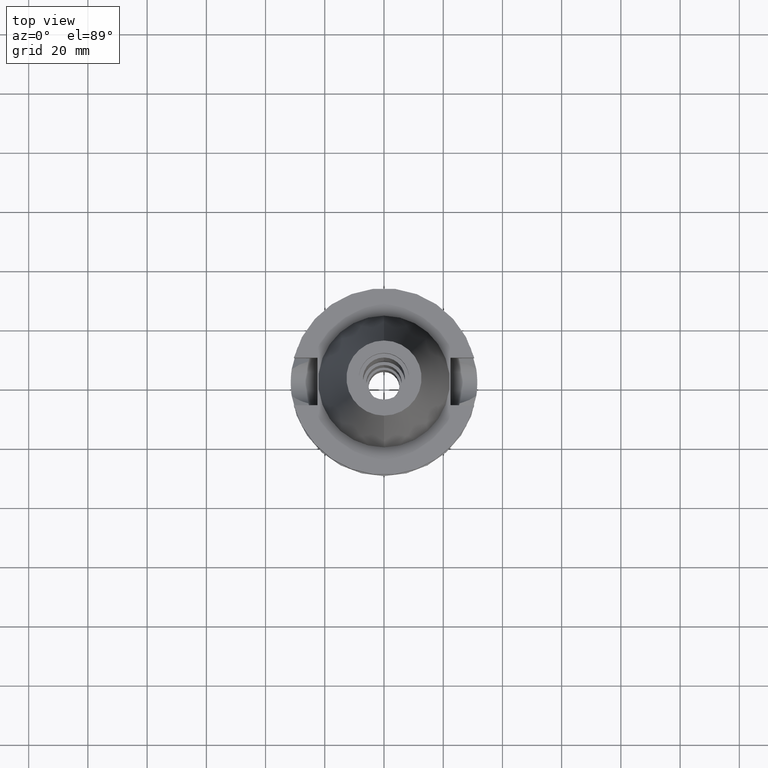
[diagram: clean part render]
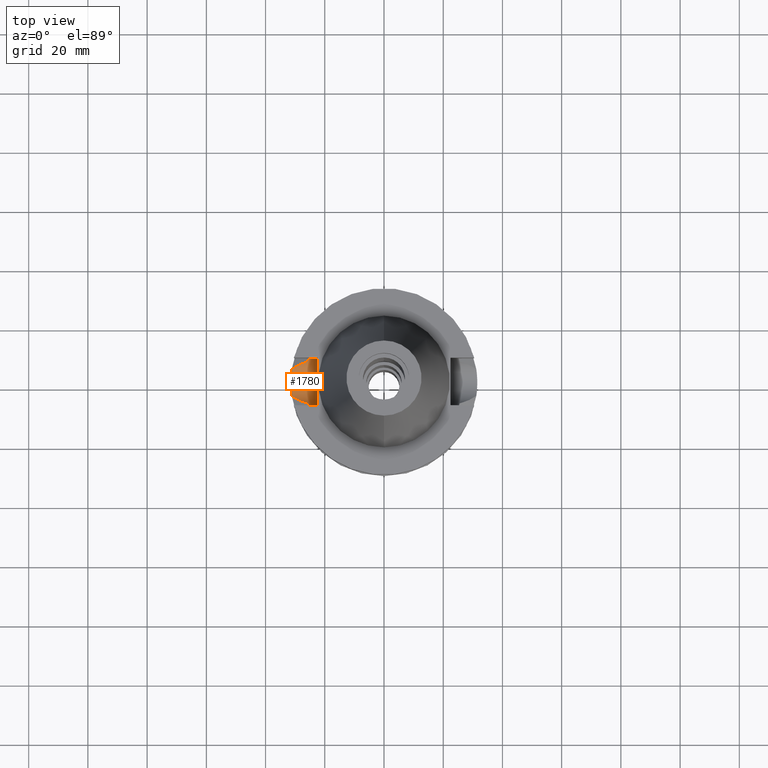
[diagram: same view with one face highlighted and labeled with its STEP entity id]
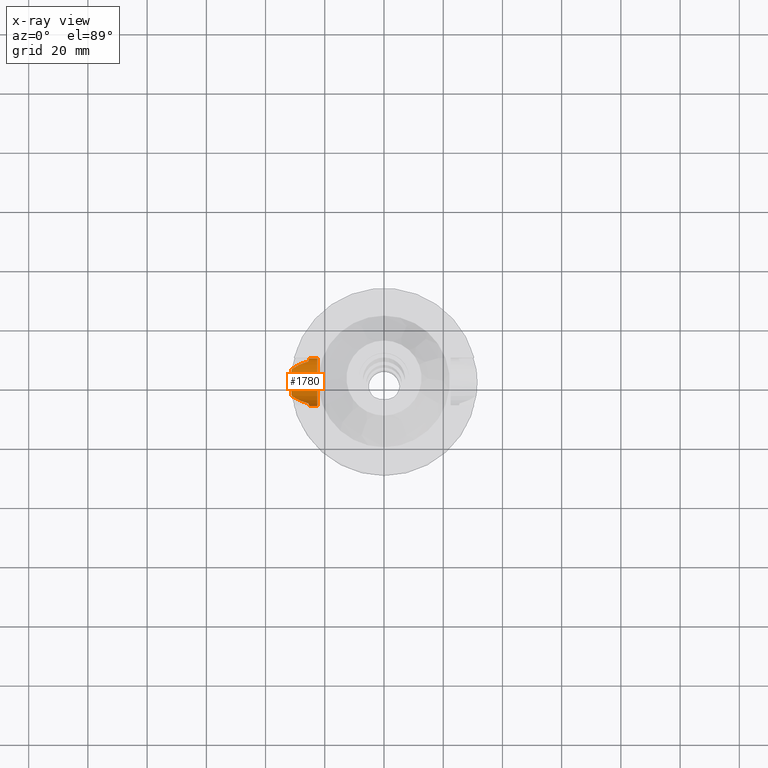
[diagram: x-ray of the same camera — body ghosted, the highlighted face saturated]
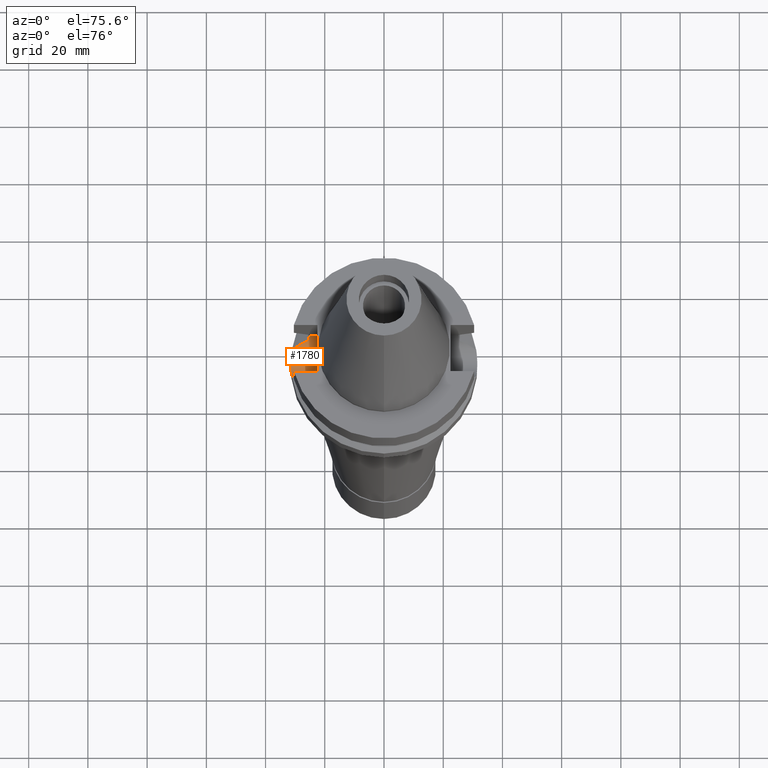
[diagram: same view with one face highlighted and labeled with its STEP entity id]
A machine part, top view. The second image highlights one B-rep face of the part: STEP entity #1780.
The next image is the same camera in x-ray: the body ghosted, the highlighted face saturated — about 0% of this face is hidden behind the body in this view.
A second angle (auxiliary view) of the same face is appended — the face is thin or edge-on in the first view.
In plain terms, the highlighted cylindrical surface (edge-blend (fillet) strip) has radius 8.05 mm, axis along (-1, 0, 0).
Its self-contained STEP definition (entity closure, byte-faithful):
#5 = CARTESIAN_POINT ( 'NONE',  ( -29.56190519260020722, -5.521818136318563219, -20.81013551602900336 ) ) ;
#19 = CARTESIAN_POINT ( 'NONE',  ( -30.43265407114605026, -5.016892109407281808, -21.25443232370989222 ) ) ;
#68 = CARTESIAN_POINT ( 'NONE',  ( -27.47915929092558329, 6.467270930592707856, -19.74622980979579978 ) ) ;
#77 = CARTESIAN_POINT ( 'NONE',  ( -25.25396593744603635, 8.030896968456861629, -15.59377931114971183 ) ) ;
#82 = CARTESIAN_POINT ( 'NONE',  ( -31.43631590508133655, -2.004794963326180124, -22.74750204103093765 ) ) ;
#104 = CARTESIAN_POINT ( 'NONE',  ( -28.47105657652038246, 6.056637778400851602, -20.25304051675456307 ) ) ;
#172 = CARTESIAN_POINT ( 'NONE',  ( -25.48481820018342248, -7.266687417052686726, -18.43221401828698802 ) ) ;
#219 = CARTESIAN_POINT ( 'NONE',  ( -25.32550226136643445, -7.802082245155482099, -16.93251888163180396 ) ) ;
#231 = B_SPLINE_CURVE_WITH_KNOTS ( 'NONE', 3,
 ( #1729, #1693, #19, #2674, #5, #2686, #1945, #1961, #1919, #2657, #2394, #2426, #2890, #968, #268, #479 ),
 .UNSPECIFIED., .F., .F.,
 ( 4, 2, 2, 1, 1, 1, 1, 2, 2, 4 ),
 ( 0.0000000000000000000, 0.2499999999999963918, 0.3749999999999946709, 0.4374999999999938383, 0.4687499999999928946, 0.4843749999999918954, 0.4921874999999920619, 0.4960937499999927280, 0.4999999999999933387, 1.000000000000000000 ),
 .UNSPECIFIED. ) ;
#256 = CARTESIAN_POINT ( 'NONE',  ( -31.17899877608999759, 4.485536235554000051, -21.63449434733000132 ) ) ;
#267 = CARTESIAN_POINT ( 'NONE',  ( -31.35519737945432439, 3.019151518628610198, -22.41476077804902189 ) ) ;
#268 = CARTESIAN_POINT ( 'NONE',  ( -26.70418400181174690, -6.775580708626685045, -19.35007700967300437 ) ) ;
#273 = AXIS2_PLACEMENT_3D ( 'NONE', #2507, #588, #2491 ) ;
#297 = CARTESIAN_POINT ( 'NONE',  ( -25.36818304348092923, 7.663708172131208585, -17.48836484279920711 ) ) ;
#328 = CARTESIAN_POINT ( 'NONE',  ( -31.41421403793098222, -2.322853185257210740, -22.65761526772426748 ) ) ;
#349 = CARTESIAN_POINT ( 'NONE',  ( -31.36262909399688326, -3.014549055427833135, -22.44710279779418016 ) ) ;
#365 = CARTESIAN_POINT ( 'NONE',  ( -28.63957092587396858, 5.979975310294790347, -20.33910818252959629 ) ) ;
#395 = EDGE_CURVE ( 'NONE', #1122, #2808, #2027, .T. ) ;
#479 = CARTESIAN_POINT ( 'NONE',  ( -25.53175183775000079, -7.097862220092999941, -18.74774300138999905 ) ) ;
#541 = EDGE_LOOP ( 'NONE', ( #2287, #1593, #1836, #2338, #1316, #2951, #1065, #1528 ) ) ;
#544 = CARTESIAN_POINT ( 'NONE',  ( -25.53175183775000079, 7.097862220092999941, -18.74774300138999905 ) ) ;
#554 = FACE_OUTER_BOUND ( 'NONE', #541, .T. ) ;
#568 = B_SPLINE_CURVE_WITH_KNOTS ( 'NONE', 3,
 ( #1786, #172, #1884, #1399, #1867, #1176, #890, #1673, #2152, #219, #704, #656, #2167, #2625 ),
 .UNSPECIFIED., .F., .F.,
 ( 4, 2, 2, 1, 1, 2, 2, 4 ),
 ( 0.0000000000000000000, 0.2500000000000225930, 0.3750000000000351386, 0.4375000000000401901, 0.4687500000000426326, 0.4843750000000427436, 0.5000000000000427436, 1.000000000000000000 ),
 .UNSPECIFIED. ) ;
#587 = CARTESIAN_POINT ( 'NONE',  ( -31.41231539579584364, 2.348418776600582181, -22.64987495964946618 ) ) ;
#588 = DIRECTION ( 'NONE',  ( -1.000000000000000000, 0.0000000000000000000, 0.0000000000000000000 ) ) ;
#591 = VECTOR ( 'NONE', #2777, 1000.000000000000000 ) ;
#630 = LINE ( 'NONE', #2098, #2220 ) ;
#641 = CARTESIAN_POINT ( 'NONE',  ( -28.65198120157347716, 5.974258422801414170, -20.34544700060268596 ) ) ;
#647 = B_SPLINE_CURVE_WITH_KNOTS ( 'NONE', 3,
 ( #768, #1984, #77, #3020, #829, #2772, #1277, #1555, #802, #2708, #1796, #297, #1815, #1748 ),
 .UNSPECIFIED., .F., .F.,
 ( 4, 2, 2, 1, 1, 2, 2, 4 ),
 ( 0.0000000000000000000, 0.2500000000000045519, 0.3750000000000056066, 0.4375000000000061062, 0.4687500000000052736, 0.4843750000000049960, 0.5000000000000046629, 1.000000000000000000 ),
 .UNSPECIFIED. ) ;
#656 = CARTESIAN_POINT ( 'NONE',  ( -25.27269246206562769, -7.973290322421786591, -16.24535685341015068 ) ) ;
#704 = CARTESIAN_POINT ( 'NONE',  ( -25.32419265906723282, -7.806329682138570369, -16.91574545218071890 ) ) ;
#757 = CARTESIAN_POINT ( 'NONE',  ( -31.37925987164072339, 2.755005892132615486, -22.51447617986856287 ) ) ;
#768 = CARTESIAN_POINT ( 'NONE',  ( -25.24772266958000344, 8.050000000000000711, -14.94999999999999929 ) ) ;
#790 = LINE ( 'NONE', #1333, #591 ) ;
#802 = CARTESIAN_POINT ( 'NONE',  ( -25.31652055493196229, 7.831184758220201658, -16.81426458566338411 ) ) ;
#822 = CARTESIAN_POINT ( 'NONE',  ( -28.09296956103505849, 6.220721833289903913, -20.05993128995342545 ) ) ;
#829 = CARTESIAN_POINT ( 'NONE',  ( -25.28049982587671707, 7.946985634402442322, -16.24435369772060156 ) ) ;
#890 = CARTESIAN_POINT ( 'NONE',  ( -25.34387967354808424, -7.742345491372923050, -17.15662736175767833 ) ) ;
#961 = CARTESIAN_POINT ( 'NONE',  ( -22.50000000000000000, 1.807578675540999863E-14, -14.94999999999999929 ) ) ;
#968 = CARTESIAN_POINT ( 'NONE',  ( -27.72542032119476829, -6.397787017355759609, -19.87203033955967513 ) ) ;
#1007 = CARTESIAN_POINT ( 'NONE',  ( -22.50000000000000000, 8.050000000000000711, -14.94999999999999929 ) ) ;
#1030 = CARTESIAN_POINT ( 'NONE',  ( -31.47051271574131093, -1.370735914174762371, -22.88488772339565003 ) ) ;
#1064 = CARTESIAN_POINT ( 'NONE',  ( -31.17899877608999759, -4.485536235554000051, -21.63449434733000132 ) ) ;
#1065 = ORIENTED_EDGE ( 'NONE', *, *, #2599, .T. ) ;
#1066 = CARTESIAN_POINT ( 'NONE',  ( -31.17899877608999759, -4.485536235554000051, -21.63449434733000132 ) ) ;
#1099 = CARTESIAN_POINT ( 'NONE',  ( -31.41089393678123898, 2.367323069519868817, -22.64407411539678350 ) ) ;
#1122 = VERTEX_POINT ( 'NONE', #2575 ) ;
#1142 = CARTESIAN_POINT ( 'NONE',  ( -31.17899877608999759, 4.485536235554000051, -21.63449434733000132 ) ) ;
#1156 = EDGE_CURVE ( 'NONE', #1434, #1484, #568, .T. ) ;
#1176 = CARTESIAN_POINT ( 'NONE',  ( -25.35411833098771339, -7.708843546317146078, -17.27003765535713953 ) ) ;
#1188 = DIRECTION ( 'NONE',  ( 1.000000000000000000, 0.0000000000000000000, 0.0000000000000000000 ) ) ;
#1267 = EDGE_CURVE ( 'NONE', #2181, #2521, #2309, .T. ) ;
#1277 = CARTESIAN_POINT ( 'NONE',  ( -25.30215616128705136, 7.877576232114727794, -16.61085564858990082 ) ) ;
#1316 = ORIENTED_EDGE ( 'NONE', *, *, #2112, .T. ) ;
#1320 = CARTESIAN_POINT ( 'NONE',  ( -31.44514041204293875, -1.858620894046744798, -22.78313581349243222 ) ) ;
#1333 = CARTESIAN_POINT ( 'NONE',  ( -25.24772266958000344, 8.050000000000000711, -14.94999999999999929 ) ) ;
#1337 = CARTESIAN_POINT ( 'NONE',  ( -28.61168418680478709, 5.992780802845016019, -20.32486464609063148 ) ) ;
#1399 = CARTESIAN_POINT ( 'NONE',  ( -25.39164478449575668, -7.584820969897874576, -17.65194245035706544 ) ) ;
#1434 = VERTEX_POINT ( 'NONE', #2754 ) ;
#1476 = CARTESIAN_POINT ( 'NONE',  ( -31.23235557087345171, 4.114652721976459482, -21.88337053046402048 ) ) ;
#1484 = VERTEX_POINT ( 'NONE', #2172 ) ;
#1514 = CARTESIAN_POINT ( 'NONE',  ( -26.13322563163643864, 6.932527380824021535, -19.05674861574250656 ) ) ;
#1518 = VERTEX_POINT ( 'NONE', #1714 ) ;
#1526 = CYLINDRICAL_SURFACE ( 'NONE', #273, 8.050000000000000711 ) ;
#1528 = ORIENTED_EDGE ( 'NONE', *, *, #1543, .T. ) ;
#1543 = EDGE_CURVE ( 'NONE', #2092, #1434, #231, .T. ) ;
#1555 = CARTESIAN_POINT ( 'NONE',  ( -25.31205759391835741, 7.845621557329842233, -16.75326793494526711 ) ) ;
#1573 = CARTESIAN_POINT ( 'NONE',  ( -31.46144185279717220, -1.566059266428326380, -22.84872847841057819 ) ) ;
#1593 = ORIENTED_EDGE ( 'NONE', *, *, #2823, .F. ) ;
#1626 = DIRECTION ( 'NONE',  ( -1.000000000000000000, 1.616208268639000174E-14, -1.034373291929000154E-14 ) ) ;
#1673 = CARTESIAN_POINT ( 'NONE',  ( -25.33292553851982021, -7.777985707516910097, -17.02558215515376716 ) ) ;
#1693 = CARTESIAN_POINT ( 'NONE',  ( -30.82496552724909122, -4.754130161038220947, -21.45425815850477136 ) ) ;
#1714 = CARTESIAN_POINT ( 'NONE',  ( -25.24772266958000344, 8.050000000000000711, -14.94999999999999929 ) ) ;
#1729 = CARTESIAN_POINT ( 'NONE',  ( -31.17899877608999759, -4.485536235554000051, -21.63449434733000132 ) ) ;
#1736 = CARTESIAN_POINT ( 'NONE',  ( -31.39062632173801504, 2.624112292721937578, -22.56124294483570480 ) ) ;
#1748 = CARTESIAN_POINT ( 'NONE',  ( -25.53175183775000079, 7.097862220092999941, -18.74774300138999905 ) ) ;
#1780 = ADVANCED_FACE ( 'NONE', ( #554 ), #1526, .F. ) ;
#1786 = CARTESIAN_POINT ( 'NONE',  ( -25.53175183775000079, -7.097862220092999941, -18.74774300138999905 ) ) ;
#1796 = CARTESIAN_POINT ( 'NONE',  ( -25.32121872273786067, 7.815971166074239029, -16.87703378351244154 ) ) ;
#1815 = CARTESIAN_POINT ( 'NONE',  ( -25.43788636140676118, 7.435506143573715754, -18.11669712823439582 ) ) ;
#1836 = ORIENTED_EDGE ( 'NONE', *, *, #1267, .T. ) ;
#1867 = CARTESIAN_POINT ( 'NONE',  ( -25.37572817765897071, -7.637723572224845547, -17.49814693645483743 ) ) ;
#1884 = CARTESIAN_POINT ( 'NONE',  ( -25.44392473217403960, -7.408251102518685016, -18.11706870841285877 ) ) ;
#1919 = CARTESIAN_POINT ( 'NONE',  ( -28.70587566557245296, -5.949413453912399063, -20.37289609757314324 ) ) ;
#1930 = DIRECTION ( 'NONE',  ( 0.0000000000000000000, 0.0000000000000000000, -1.000000000000000000 ) ) ;
#1945 = CARTESIAN_POINT ( 'NONE',  ( -29.03084025621368269, -5.794793314339117707, -20.53890626791873331 ) ) ;
#1961 = CARTESIAN_POINT ( 'NONE',  ( -28.81524386551601680, -5.898209750701584042, -20.42876798718874909 ) ) ;
#1984 = CARTESIAN_POINT ( 'NONE',  ( -25.24772266958000344, 8.050000000000018474, -15.27000127552689257 ) ) ;
#2005 = CARTESIAN_POINT ( 'NONE',  ( -27.73059905492288379, 6.369785171629415821, -19.87477903343373953 ) ) ;
#2027 = B_SPLINE_CURVE_WITH_KNOTS ( 'NONE', 3,
 ( #544, #1514, #2249, #68, #2005, #822, #3047, #104, #2307, #1337, #365, #641, #2581, #2513, #2795 ),
 .UNSPECIFIED., .F., .F.,
 ( 4, 2, 2, 1, 1, 1, 2, 2, 4 ),
 ( 0.0000000000000000000, 0.2500000000000028866, 0.3750000000000039968, 0.4375000000000048850, 0.4687500000000059952, 0.4843750000000067724, 0.4921875000000067168, 0.5000000000000067724, 1.000000000000000000 ),
 .UNSPECIFIED. ) ;
#2071 = CARTESIAN_POINT ( 'NONE',  ( -31.49233501189770834, -0.7856882652539357581, -22.97126140124212412 ) ) ;
#2092 = VERTEX_POINT ( 'NONE', #1064 ) ;
#2098 = CARTESIAN_POINT ( 'NONE',  ( -22.50000000000000000, -8.050000000000000711, -14.94999999999999929 ) ) ;
#2112 = EDGE_CURVE ( 'NONE', #1518, #1122, #647, .T. ) ;
#2152 = CARTESIAN_POINT ( 'NONE',  ( -25.32844325893299242, -7.792538688758869014, -16.96970524096792232 ) ) ;
#2167 = CARTESIAN_POINT ( 'NONE',  ( -25.24772266957999634, -8.049999999999979394, -15.58999073685843051 ) ) ;
#2172 = CARTESIAN_POINT ( 'NONE',  ( -25.24772266958000344, -8.050000000000000711, -14.94999999999999929 ) ) ;
#2181 = VERTEX_POINT ( 'NONE', #2242 ) ;
#2220 = VECTOR ( 'NONE', #1626, 1000.000000000000000 ) ;
#2242 = CARTESIAN_POINT ( 'NONE',  ( -22.50000000000000000, -8.050000000000000711, -14.94999999999999929 ) ) ;
#2249 = CARTESIAN_POINT ( 'NONE',  ( -26.69526171916612611, 6.752326962205073890, -19.34502392572909812 ) ) ;
#2274 = CARTESIAN_POINT ( 'NONE',  ( -31.40765911674537492, 2.409816726495039418, -22.63087093716620402 ) ) ;
#2287 = ORIENTED_EDGE ( 'NONE', *, *, #1156, .T. ) ;
#2288 = CARTESIAN_POINT ( 'NONE',  ( -31.42484152043655854, -2.174941912305043079, -22.70090902052895743 ) ) ;
#2307 = CARTESIAN_POINT ( 'NONE',  ( -28.56973853804568364, 6.011972802952889161, -20.30344071896973190 ) ) ;
#2309 = CIRCLE ( 'NONE', #2405, 8.050000000000000711 ) ;
#2338 = ORIENTED_EDGE ( 'NONE', *, *, #2725, .F. ) ;
#2394 = CARTESIAN_POINT ( 'NONE',  ( -28.62711069943992470, -5.985776198111143032, -20.33265852239552274 ) ) ;
#2405 = AXIS2_PLACEMENT_3D ( 'NONE', #961, #1188, #1930 ) ;
#2426 = CARTESIAN_POINT ( 'NONE',  ( -28.61129976556766152, -5.993029578398560986, -20.32458146603351778 ) ) ;
#2437 = CARTESIAN_POINT ( 'NONE',  ( -31.33738292867439768, 3.198404816707941301, -22.34003903710667771 ) ) ;
#2491 = DIRECTION ( 'NONE',  ( 0.0000000000000000000, 0.0000000000000000000, -1.000000000000000000 ) ) ;
#2507 = CARTESIAN_POINT ( 'NONE',  ( -22.50000000000000000, 1.807578675540999863E-14, -14.94999999999999929 ) ) ;
#2513 = CARTESIAN_POINT ( 'NONE',  ( -30.48766009427204438, 5.010033217112506598, -21.28253799970643811 ) ) ;
#2521 = VERTEX_POINT ( 'NONE', #1007 ) ;
#2527 = CARTESIAN_POINT ( 'NONE',  ( -31.40272378719207680, 2.473736941874224105, -22.61072056115919793 ) ) ;
#2554 = CARTESIAN_POINT ( 'NONE',  ( -31.41616826590722766, -2.296273242432977035, -22.66558608295766675 ) ) ;
#2575 = CARTESIAN_POINT ( 'NONE',  ( -25.53175183775000079, 7.097862220092999941, -18.74774300138999905 ) ) ;
#2581 = CARTESIAN_POINT ( 'NONE',  ( -29.65044121050465620, 5.512451875771509968, -20.85544536326094089 ) ) ;
#2599 = EDGE_CURVE ( 'NONE', #2808, #2092, #2897, .T. ) ;
#2625 = CARTESIAN_POINT ( 'NONE',  ( -25.24772266958000344, -8.050000000000000711, -14.94999999999999929 ) ) ;
#2657 = CARTESIAN_POINT ( 'NONE',  ( -28.65079906445198077, -5.974886824000520846, -20.34475981737326933 ) ) ;
#2674 = CARTESIAN_POINT ( 'NONE',  ( -29.78676957609832243, -5.397306293919974074, -20.92492494597458830 ) ) ;
#2686 = CARTESIAN_POINT ( 'NONE',  ( -29.21025428962974502, -5.704485272239825377, -20.63054915725575356 ) ) ;
#2708 = CARTESIAN_POINT ( 'NONE',  ( -25.31954463780457587, 7.821394976198481785, -16.85491936549455971 ) ) ;
#2725 = EDGE_CURVE ( 'NONE', #1518, #2521, #790, .T. ) ;
#2746 = CARTESIAN_POINT ( 'NONE',  ( -31.28474506675629030, -3.750492910935756097, -22.12773486725307137 ) ) ;
#2754 = CARTESIAN_POINT ( 'NONE',  ( -25.53175183775000079, -7.097862220092999941, -18.74774300138999905 ) ) ;
#2760 = CARTESIAN_POINT ( 'NONE',  ( -31.50021840333851841, 0.7528101734555514568, -23.00129109588197451 ) ) ;
#2772 = CARTESIAN_POINT ( 'NONE',  ( -25.29454717857531421, 7.902012029789251102, -16.48868902742450970 ) ) ;
#2777 = DIRECTION ( 'NONE',  ( 1.000000000000000000, 1.551559937893000172E-14, -3.620306521749999889E-14 ) ) ;
#2795 = CARTESIAN_POINT ( 'NONE',  ( -31.17899877608999759, 4.485536235554000051, -21.63449434733000132 ) ) ;
#2808 = VERTEX_POINT ( 'NONE', #1142 ) ;
#2823 = EDGE_CURVE ( 'NONE', #2181, #1484, #630, .T. ) ;
#2890 = CARTESIAN_POINT ( 'NONE',  ( -28.60225798710769141, -5.997168067687799642, -20.31996246445449827 ) ) ;
#2897 = B_SPLINE_CURVE_WITH_KNOTS ( 'NONE', 3,
 ( #256, #1476, #2948, #2437, #267, #757, #1736, #2527, #2274, #1099, #587, #2996, #2760, #3042, #2071, #1030, #1573, #1320, #82, #2288, #3009, #2554, #328, #349, #2746, #1066 ),
 .UNSPECIFIED., .F., .F.,
 ( 4, 2, 2, 1, 1, 2, 2, 2, 2, 2, 1, 1, 2, 2, 4 ),
 ( 0.0000000000000000000, 0.1249999999999988065, 0.1874999999999982236, 0.2187499999999979738, 0.2343749999999979183, 0.2421874999999979183, 0.2499999999999978906, 0.4999999999999943379, 0.6249999999999925615, 0.6874999999999917843, 0.7187499999999912292, 0.7343749999999910072, 0.7421874999999908962, 0.7499999999999908962, 1.000000000000000000 ),
 .UNSPECIFIED. ) ;
#2948 = CARTESIAN_POINT ( 'NONE',  ( -31.27862120836749682, 3.742756829697312604, -22.08821775233555229 ) ) ;
#2951 = ORIENTED_EDGE ( 'NONE', *, *, #395, .T. ) ;
#2996 = CARTESIAN_POINT ( 'NONE',  ( -31.47163488369578843, 1.545921344786934659, -22.89186723581261873 ) ) ;
#3009 = CARTESIAN_POINT ( 'NONE',  ( -31.41967125704819708, -2.247756301406611534, -22.67985970227990222 ) ) ;
#3020 = CARTESIAN_POINT ( 'NONE',  ( -25.27269574104415994, 7.971769475022786544, -16.08146184953518443 ) ) ;
#3042 = CARTESIAN_POINT ( 'NONE',  ( -31.49969615243392695, -0.3969276159127314574, -22.99933701212079029 ) ) ;
#3047 = CARTESIAN_POINT ( 'NONE',  ( -28.27045752912021825, 6.145480637969789939, -20.15059067148444072 ) ) ;